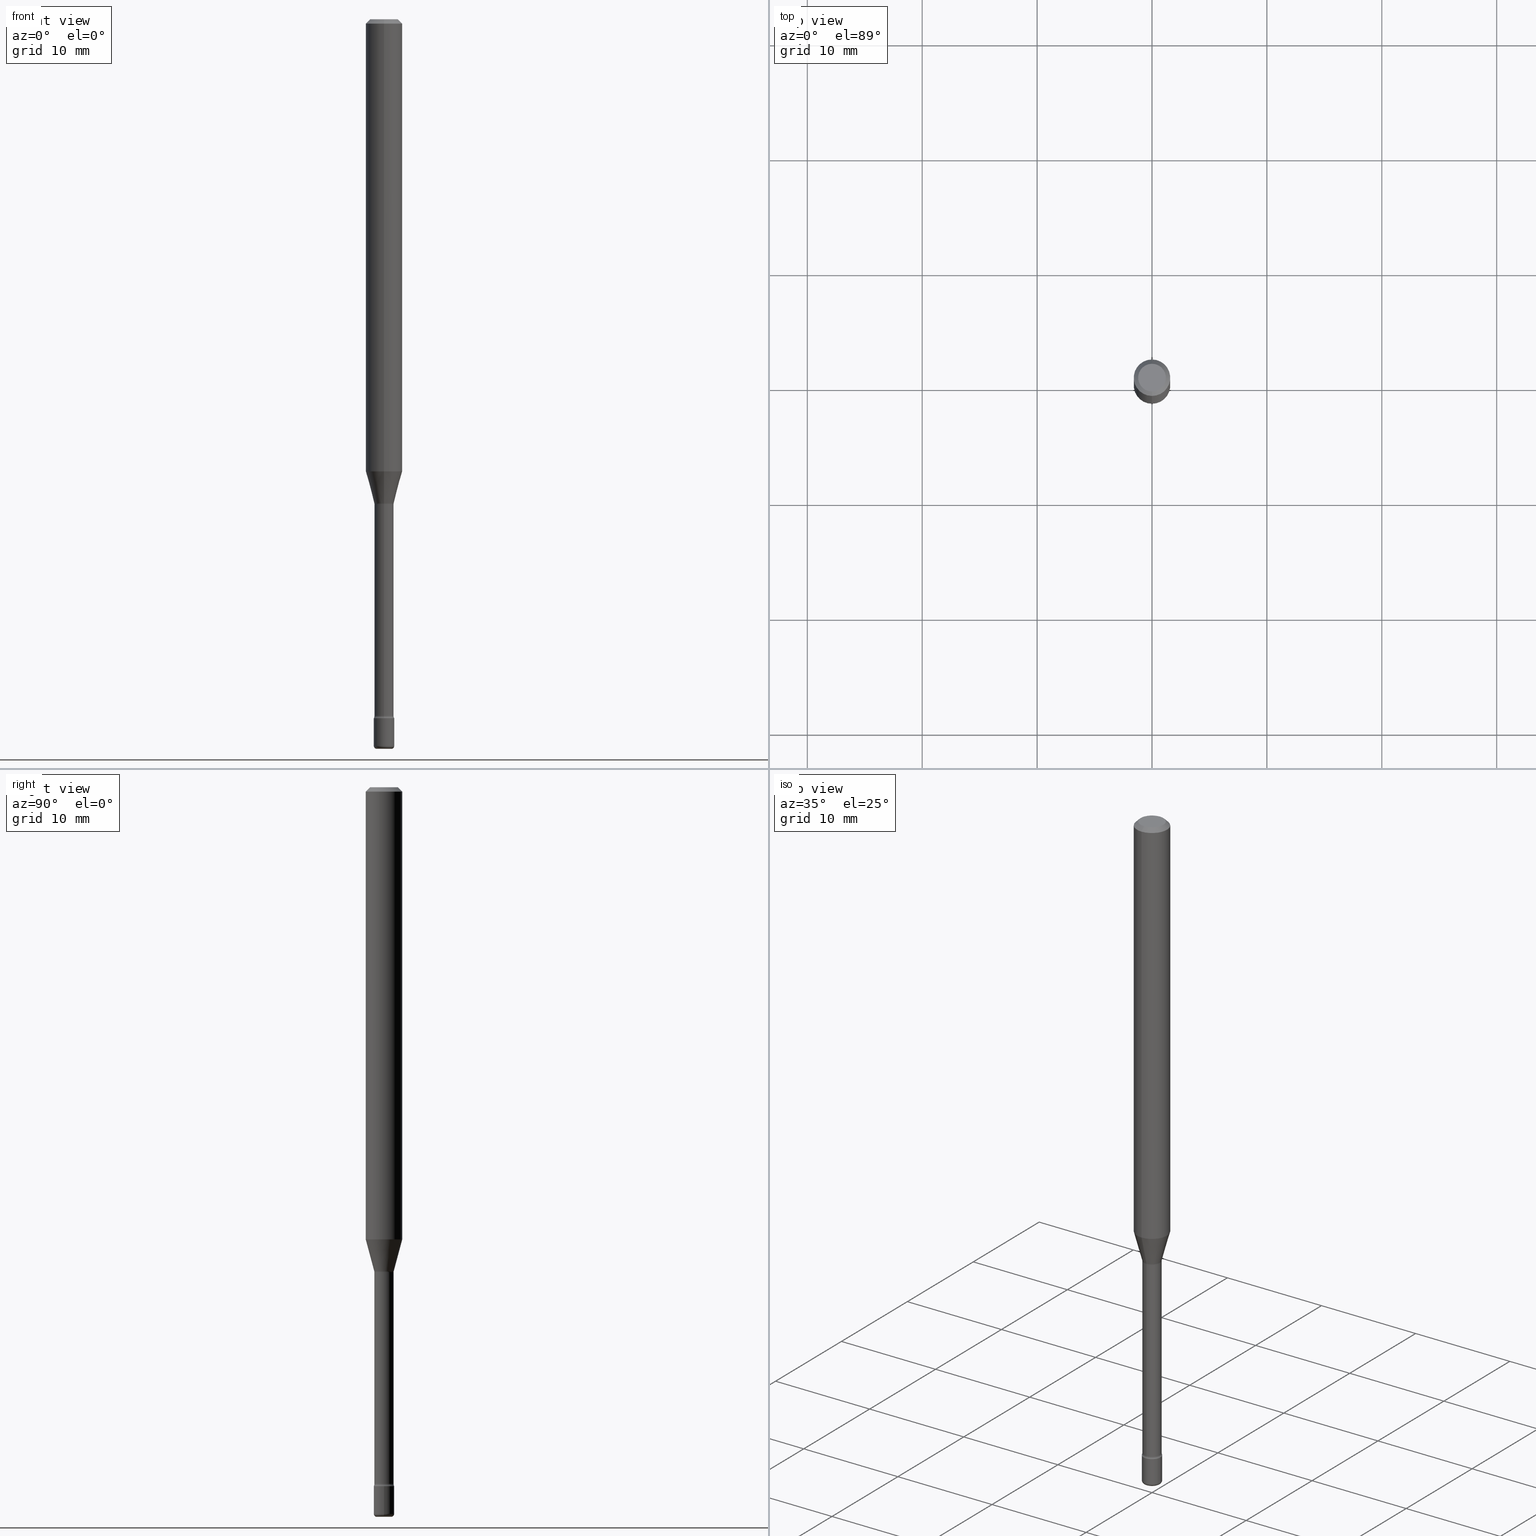
[diagram: canonical four-view strip — front | top / right | iso, engineering-drawing reading convention]
A machine part, canonical four-view strip (front | top / right | iso — engineering-drawing reading convention). The complete STEP part file that produces these views, byte-faithful:
ISO-10303-21;
HEADER;
FILE_DESCRIPTION (( 'STEP AP203' ),
    '1' );
FILE_NAME ('08937.STEP',
    '2024-03-06T20:11:35',
    ( '' ),
    ( '' ),
    'SwSTEP 2.0',
    'SolidWorks 2023',
    '' );
FILE_SCHEMA (( 'CONFIG_CONTROL_DESIGN' ));
ENDSEC;

DATA;
#1 = DIRECTION ( 'NONE',  ( -2.445361929537154917E-29, 3.491634392286096321E-15, 1.000000000000000000 ) ) ;
#2 = EDGE_CURVE ( 'NONE', #373, #99, #375, .T. ) ;
#3 = ORIENTED_EDGE ( 'NONE', *, *, #29, .T. ) ;
#4 = ORIENTED_EDGE ( 'NONE', *, *, #101, .F. ) ;
#5 = CARTESIAN_POINT ( 'NONE',  ( 2.374002335562130443E-16, 0.03341111260565819002, -1.658092501787273410 ) ) ;
#6 = CONICAL_SURFACE ( 'NONE', #281, 0.06250000000000000000, 0.7853981633974485010 ) ;
#7 = VECTOR ( 'NONE', #569, 39.37007874015748854 ) ;
#8 = PERSON_AND_ORGANIZATION ( #297, #303 ) ;
#9 = VERTEX_POINT ( 'NONE', #307 ) ;
#10 = DATE_AND_TIME ( #366, #537 ) ;
#11 = ORIENTED_EDGE ( 'NONE', *, *, #421, .T. ) ;
#12 = DIRECTION ( 'NONE',  ( 7.105427357601001859E-15, 1.000000000000000000, -3.491481338843145583E-15 ) ) ;
#13 = EDGE_CURVE ( 'NONE', #457, #275, #483, .T. ) ;
#14 = EDGE_LOOP ( 'NONE', ( #480, #201, #90, #508 ) ) ;
#15 = CARTESIAN_POINT ( 'NONE',  ( 4.064307499408922751E-29, -5.802753956057700708E-15, -1.661974787463811332 ) ) ;
#16 = EDGE_CURVE ( 'NONE', #231, #387, #131, .T. ) ;
#17 = EDGE_CURVE ( 'NONE', #231, #359, #294, .T. ) ;
#18 = AXIS2_PLACEMENT_3D ( 'NONE', #468, #168, #251 ) ;
#19 = AXIS2_PLACEMENT_3D ( 'NONE', #493, #314, #361 ) ;
#20 = PERSON_AND_ORGANIZATION_ROLE ( 'design_supplier' ) ;
#21 = EDGE_LOOP ( 'NONE', ( #547, #106, #311, #184 ) ) ;
#22 = CARTESIAN_POINT ( 'NONE',  ( -4.364351673553916201E-16, -0.06250000000000000000, 6.963005484091270833E-16 ) ) ;
#23 = CARTESIAN_POINT ( 'NONE',  ( 3.407447217031568368E-16, 0.03341111260565819002, -1.658092501787273410 ) ) ;
#24 = ORIENTED_EDGE ( 'NONE', *, *, #17, .F. ) ;
#25 = DIRECTION ( 'NONE',  ( -2.445361929537154917E-29, 3.491634392286096321E-15, 1.000000000000000000 ) ) ;
#26 = DIRECTION ( 'NONE',  ( -2.445468806185136597E-29, 3.491481338843145583E-15, 1.000000000000000000 ) ) ;
#27 = CARTESIAN_POINT ( 'NONE',  ( 4.064129873114609008E-29, -5.803008327021018948E-15, -1.661974787463811332 ) ) ;
#28 = EDGE_CURVE ( 'NONE', #57, #9, #130, .T. ) ;
#29 = EDGE_CURVE ( 'NONE', #373, #396, #92, .T. ) ;
#30 = AXIS2_PLACEMENT_3D ( 'NONE', #157, #26, #117 ) ;
#31 = AXIS2_PLACEMENT_3D ( 'NONE', #75, #515, #420 ) ;
#32 = AXIS2_PLACEMENT_3D ( 'NONE', #517, #202, #165 ) ;
#33 = DIRECTION ( 'NONE',  ( 1.000000000000000000, -6.982962677686265922E-15, 4.876176775795936353E-29 ) ) ;
#34 = EDGE_CURVE ( 'NONE', #543, #359, #318, .T. ) ;
#35 = CYLINDRICAL_SURFACE ( 'NONE', #191, 0.03290000000000004726 ) ;
#36 = EDGE_CURVE ( 'NONE', #388, #99, #64, .T. ) ;
#37 = AXIS2_PLACEMENT_3D ( 'NONE', #380, #426, #210 ) ;
#38 = DIRECTION ( 'NONE',  ( -6.982962677686265133E-15, -1.000000000000000000, 3.491634392286096715E-15 ) ) ;
#39 = ADVANCED_FACE ( 'NONE', ( #250 ), #340, .F. ) ;
#40 = DATE_AND_TIME ( #186, #431 ) ;
#41 = ORIENTED_EDGE ( 'NONE', *, *, #29, .F. ) ;
#42 = DIRECTION ( 'NONE',  ( -6.982962677686265922E-15, -1.000000000000000000, 4.370956789862821150E-15 ) ) ;
#43 = EDGE_LOOP ( 'NONE', ( #449, #292 ) ) ;
#44 = ORIENTED_EDGE ( 'NONE', *, *, #376, .F. ) ;
#45 = LINE ( 'NONE', #393, #115 ) ;
#46 = AXIS2_PLACEMENT_3D ( 'NONE', #448, #218, #179 ) ;
#47 = AXIS2_PLACEMENT_3D ( 'NONE', #312, #50, #532 ) ;
#48 = ADVANCED_FACE ( 'NONE', ( #164 ), #343, .T. ) ;
#49 = ADVANCED_FACE ( 'NONE', ( #345 ), #141, .T. ) ;
#50 = DIRECTION ( 'NONE',  ( -2.445468806185136597E-29, 3.491481338843145583E-15, 1.000000000000000000 ) ) ;
#51 = FACE_OUTER_BOUND ( 'NONE', #438, .T. ) ;
#52 = EDGE_LOOP ( 'NONE', ( #489, #533, #236, #409 ) ) ;
#53 = DIRECTION ( 'NONE',  ( -2.445468806185136597E-29, 3.491481338843145583E-15, 1.000000000000000000 ) ) ;
#54 = CONICAL_SURFACE ( 'NONE', #180, 0.03341111260566397706, 0.2617993877991495744 ) ;
#55 = CALENDAR_DATE ( 2024, 6, 3 ) ;
#56 = CC_DESIGN_APPROVAL ( #288, ( #441 ) ) ;
#57 = VERTEX_POINT ( 'NONE', #317 ) ;
#58 = PERSON_AND_ORGANIZATION_ROLE ( 'classification_officer' ) ;
#59 = ADVANCED_FACE ( 'NONE', ( #176 ), #269, .T. ) ;
#60 = ORIENTED_EDGE ( 'NONE', *, *, #36, .F. ) ;
#61 = ORIENTED_EDGE ( 'NONE', *, *, #86, .F. ) ;
#62 = APPLICATION_CONTEXT ( 'configuration controlled 3d designs of mechanical parts and assemblies' ) ;
#63 = CARTESIAN_POINT ( 'NONE',  ( 6.617399431615516844E-46, -9.463332413969183730E-32, -2.708191715859933263E-17 ) ) ;
#64 = CIRCLE ( 'NONE', #570, 0.03289999999999999869 ) ;
#65 = AXIS2_PLACEMENT_3D ( 'NONE', #15, #554, #239 ) ;
#66 = CALENDAR_DATE ( 2024, 6, 3 ) ;
#67 = DIRECTION ( 'NONE',  ( -1.807323732225325406E-15, -0.2588190451025175198, 0.9659258262890690894 ) ) ;
#68 = ORIENTED_EDGE ( 'NONE', *, *, #120, .T. ) ;
#69 = ADVANCED_FACE ( 'NONE', ( #498 ), #97, .T. ) ;
#70 = APPLICATION_PROTOCOL_DEFINITION ( 'international standard', 'config_control_design', 1994, #348 ) ;
#71 = DIRECTION ( 'NONE',  ( 2.445361929537154917E-29, -3.491634392286096321E-15, -1.000000000000000000 ) ) ;
#72 = MECHANICAL_CONTEXT ( 'NONE', #62, 'mechanical' ) ;
#73 = AXIS2_PLACEMENT_3D ( 'NONE', #27, #325, #507 ) ;
#74 = DIRECTION ( 'NONE',  ( -6.982962677686266711E-15, -1.000000000000000000, 3.491481338843145583E-15 ) ) ;
#75 = CARTESIAN_POINT ( 'NONE',  ( 2.444036937190778979E-16, 0.03499999999999164196, -2.395000000000000018 ) ) ;
#76 = AXIS2_PLACEMENT_3D ( 'NONE', #91, #182, #178 ) ;
#77 = LINE ( 'NONE', #5, #7 ) ;
#78 = APPROVAL_STATUS ( 'not_yet_approved' ) ;
#79 = DIRECTION ( 'NONE',  ( 1.000000000000000000, -6.982962677686254878E-15, 0.000000000000000000 ) ) ;
#80 = CARTESIAN_POINT ( 'NONE',  ( -1.169113584055446105E-44, 1.669184350826100908E-30, 4.780733988912460139E-16 ) ) ;
#81 = VERTEX_POINT ( 'NONE', #274 ) ;
#82 = CIRCLE ( 'NONE', #484, 0.03500000000000000333 ) ;
#83 = DIRECTION ( 'NONE',  ( -2.445361929537154917E-29, 3.491634392286096321E-15, 1.000000000000000000 ) ) ;
#84 = CARTESIAN_POINT ( 'NONE',  ( 3.668042894305739311E-31, -5.237451588429154292E-17, -0.01500000000000002720 ) ) ;
#85 = ADVANCED_FACE ( 'NONE', ( #51 ), #54, .T. ) ;
#86 = EDGE_CURVE ( 'NONE', #416, #9, #149, .T. ) ;
#87 = DIRECTION ( 'NONE',  ( 1.000000000000000000, -6.982962677686265922E-15, 4.876176775795935793E-29 ) ) ;
#88 = EDGE_LOOP ( 'NONE', ( #235, #192, #60, #552 ) ) ;
#89 = DIRECTION ( 'NONE',  ( -6.982962677686266711E-15, -1.000000000000000000, 0.000000000000000000 ) ) ;
#90 = ORIENTED_EDGE ( 'NONE', *, *, #516, .T. ) ;
#91 = CARTESIAN_POINT ( 'NONE',  ( -3.344839122611314876E-16, -0.04790000000000579905, -1.661974787463811110 ) ) ;
#92 = CIRCLE ( 'NONE', #37, 0.03290000000000008890 ) ;
#93 = AXIS2_PLACEMENT_3D ( 'NONE', #63, #25, #293 ) ;
#94 = PERSON_AND_ORGANIZATION ( #297, #303 ) ;
#95 = APPROVAL ( #506, 'UNSPECIFIED' ) ;
#96 = CARTESIAN_POINT ( 'NONE',  ( 6.113672015462842613E-29, -8.728703347107864943E-15, -2.500000000000000000 ) ) ;
#97 = PLANE ( 'NONE',  #521 ) ;
#98 = APPROVAL_STATUS ( 'not_yet_approved' ) ;
#99 = VERTEX_POINT ( 'NONE', #263 ) ;
#100 = PLANE ( 'NONE',  #214 ) ;
#101 = EDGE_CURVE ( 'NONE', #139, #99, #280, .T. ) ;
#102 = SECURITY_CLASSIFICATION_LEVEL ( 'unclassified' ) ;
#103 = VERTEX_POINT ( 'NONE', #337 ) ;
#104 = TOROIDAL_SURFACE ( 'NONE', #30, 0.02500000000000000139, 0.01000000000000008521 ) ;
#105 = AXIS2_PLACEMENT_3D ( 'NONE', #228, #439, #535 ) ;
#106 = ORIENTED_EDGE ( 'NONE', *, *, #242, .T. ) ;
#107 = CYLINDRICAL_SURFACE ( 'NONE', #536, 0.06250000000000000000 ) ;
#108 = ADVANCED_FACE ( 'NONE', ( #237 ), #104, .T. ) ;
#109 = SHAPE_DEFINITION_REPRESENTATION ( #446, #495 ) ;
#110 = VERTEX_POINT ( 'NONE', #551 ) ;
#111 = COORDINATED_UNIVERSAL_TIME_OFFSET ( 5, 0, .BEHIND. ) ;
#112 = EDGE_LOOP ( 'NONE', ( #188, #319 ) ) ;
#113 = PLANE ( 'NONE',  #31 ) ;
#114 = AXIS2_PLACEMENT_3D ( 'NONE', #166, #560, #38 ) ;
#115 = VECTOR ( 'NONE', #185, 39.37007874015748143 ) ;
#116 = DIRECTION ( 'NONE',  ( -2.445361929537154917E-29, 3.491634392286096321E-15, 1.000000000000000000 ) ) ;
#117 = DIRECTION ( 'NONE',  ( 1.000000000000000000, -6.982962677686259611E-15, 4.883557194083110659E-29 ) ) ;
#118 = CARTESIAN_POINT ( 'NONE',  ( 0.03500000000000000333, -8.606501500248353382E-15, -2.395000000000000018 ) ) ;
#119 = DIRECTION ( 'NONE',  ( 1.000000000000000000, 0.000000000000000000, 0.000000000000000000 ) ) ;
#120 = EDGE_CURVE ( 'NONE', #387, #543, #358, .T. ) ;
#121 = DIRECTION ( 'NONE',  ( -2.445361929537154917E-29, 3.491634392286096321E-15, 1.000000000000000000 ) ) ;
#122 = CARTESIAN_POINT ( 'NONE',  ( -3.344839122611139354E-16, -0.04790000000000835256, -2.387345589506696175 ) ) ;
#123 = FACE_OUTER_BOUND ( 'NONE', #436, .T. ) ;
#124 = ADVANCED_FACE ( 'NONE', ( #462 ), #107, .T. ) ;
#125 = EDGE_CURVE ( 'NONE', #396, #388, #410, .T. ) ;
#126 = CIRCLE ( 'NONE', #412, 0.06250000000000000000 ) ;
#127 = CC_DESIGN_APPROVAL ( #453, ( #382 ) ) ;
#128 = EDGE_CURVE ( 'NONE', #9, #416, #504, .T. ) ;
#129 = DIRECTION ( 'NONE',  ( -2.445361929537154917E-29, 3.491634392286096321E-15, 1.000000000000000000 ) ) ;
#130 = LINE ( 'NONE', #477, #349 ) ;
#131 = CIRCLE ( 'NONE', #528, 0.02500000000000000139 ) ;
#132 = EDGE_LOOP ( 'NONE', ( #4, #289, #219, #144 ) ) ;
#133 = TOROIDAL_SURFACE ( 'NONE', #198, 0.04790000000000001895, 0.01499999999999993006 ) ;
#134 = AXIS2_PLACEMENT_3D ( 'NONE', #122, #377, #369 ) ;
#135 = CARTESIAN_POINT ( 'NONE',  ( 5.856897790813402508E-29, -8.362097806529333416E-15, -2.395000000000000018 ) ) ;
#136 = CARTESIAN_POINT ( 'NONE',  ( 3.789164840099429105E-29, -5.410396765372311096E-15, -1.549531296095961519 ) ) ;
#137 = CC_DESIGN_PERSON_AND_ORGANIZATION_ASSIGNMENT ( #151, #20, ( #441 ) ) ;
#138 = APPROVAL_DATE_TIME ( #40, #453 ) ;
#139 = VERTEX_POINT ( 'NONE', #23 ) ;
#140 = LINE ( 'NONE', #355, #223 ) ;
#141 = CONICAL_SURFACE ( 'NONE', #461, 0.06250000000000000000, 0.7853981633974485010 ) ;
#142 = CIRCLE ( 'NONE', #76, 0.01500000000000001853 ) ;
#143 = PERSON_AND_ORGANIZATION_ROLE ( 'creator' ) ;
#144 = ORIENTED_EDGE ( 'NONE', *, *, #36, .T. ) ;
#145 = CARTESIAN_POINT ( 'NONE',  ( 5.838179168722291637E-29, -8.335372575132119928E-15, -2.387345589506696619 ) ) ;
#146 = DATE_AND_TIME ( #55, #414 ) ;
#147 = ORIENTED_EDGE ( 'NONE', *, *, #16, .T. ) ;
#148 = ORIENTED_EDGE ( 'NONE', *, *, #17, .T. ) ;
#149 = CIRCLE ( 'NONE', #450, 0.06250000000000000000 ) ;
#150 = AXIS2_PLACEMENT_3D ( 'NONE', #273, #1, #89 ) ;
#151 = PERSON_AND_ORGANIZATION ( #297, #303 ) ;
#152 = ORIENTED_EDGE ( 'NONE', *, *, #221, .T. ) ;
#153 = FACE_OUTER_BOUND ( 'NONE', #331, .T. ) ;
#154 = ADVANCED_FACE ( 'NONE', ( #153 ), #133, .F. ) ;
#155 = APPROVAL_ROLE ( '' ) ;
#156 = EDGE_LOOP ( 'NONE', ( #147, #68, #365, #24 ) ) ;
#157 = CARTESIAN_POINT ( 'NONE',  ( 6.089217327400989947E-29, -8.693788533719431716E-15, -2.489999999999999769 ) ) ;
#158 = ORIENTED_EDGE ( 'NONE', *, *, #466, .F. ) ;
#159 = VECTOR ( 'NONE', #169, 39.37007874015748143 ) ;
#160 = AXIS2_PLACEMENT_3D ( 'NONE', #381, #475, #344 ) ;
#161 =( LENGTH_UNIT ( ) NAMED_UNIT ( * ) SI_UNIT ( $, .METRE. ) );
#162 = DIRECTION ( 'NONE',  ( 7.105427357601001859E-15, 1.000000000000000000, 0.000000000000000000 ) ) ;
#163 = DIRECTION ( 'NONE',  ( -6.982962677686265922E-15, -1.000000000000000000, 3.491634392286095926E-15 ) ) ;
#164 = FACE_OUTER_BOUND ( 'NONE', #407, .T. ) ;
#165 = DIRECTION ( 'NONE',  ( -6.982962677686266711E-15, -1.000000000000000000, 0.000000000000000000 ) ) ;
#166 = CARTESIAN_POINT ( 'NONE',  ( 6.617399431615516844E-46, -9.463332413969183730E-32, -2.708191715859933263E-17 ) ) ;
#167 = DIRECTION ( 'NONE',  ( 1.000000000000000000, -6.982962677686276966E-15, 0.000000000000000000 ) ) ;
#168 = DIRECTION ( 'NONE',  ( -2.445361929537154917E-29, 3.491634392286096321E-15, 1.000000000000000000 ) ) ;
#169 = DIRECTION ( 'NONE',  ( -2.445361929537154917E-29, 3.491634392286096321E-15, 1.000000000000000000 ) ) ;
#170 = VECTOR ( 'NONE', #197, 39.37007874015748143 ) ;
#171 = LOCAL_TIME ( 15, 11, 35.00000000000000000, #278 ) ;
#172 = CARTESIAN_POINT ( 'NONE',  ( -4.287811248607203282E-16, -0.06250000000000005551, -0.01499999999999981036 ) ) ;
#173 = MANIFOLD_SOLID_BREP ( 'Body-Move/Copy2[1]', #378 ) ;
#174 = CARTESIAN_POINT ( 'NONE',  ( 3.668042894305739311E-31, -5.237451588429154292E-17, -0.01500000000000002720 ) ) ;
#175 = DIRECTION ( 'NONE',  ( -6.982962677686265133E-15, -1.000000000000000000, 3.491634392286096321E-15 ) ) ;
#176 = FACE_OUTER_BOUND ( 'NONE', #88, .T. ) ;
#177 = VERTEX_POINT ( 'NONE', #418 ) ;
#178 = DIRECTION ( 'NONE',  ( -6.982962677686267499E-15, -1.000000000000000000, 0.000000000000000000 ) ) ;
#179 = DIRECTION ( 'NONE',  ( -6.982962677686265133E-15, -1.000000000000000000, 3.491634392286094348E-15 ) ) ;
#180 = AXIS2_PLACEMENT_3D ( 'NONE', #230, #266, #525 ) ;
#181 = ORIENTED_EDGE ( 'NONE', *, *, #13, .T. ) ;
#182 = DIRECTION ( 'NONE',  ( -1.000000000000000000, 6.982962677686265922E-15, -4.883557194083112340E-29 ) ) ;
#183 = MANIFOLD_SOLID_BREP ( 'Body-Move/Copy2[2]', #401 ) ;
#184 = ORIENTED_EDGE ( 'NONE', *, *, #478, .F. ) ;
#185 = DIRECTION ( 'NONE',  ( 4.937700262164548831E-15, 0.7071067811865452413, -0.7071067811865497932 ) ) ;
#186 = CALENDAR_DATE ( 2024, 6, 3 ) ;
#187 = DESIGN_CONTEXT ( 'detailed design', #348, 'design' ) ;
#188 = ORIENTED_EDGE ( 'NONE', *, *, #296, .T. ) ;
#189 = ORIENTED_EDGE ( 'NONE', *, *, #482, .F. ) ;
#190 = DIRECTION ( 'NONE',  ( -2.445361929537154917E-29, 3.491634392286096321E-15, 1.000000000000000000 ) ) ;
#191 = AXIS2_PLACEMENT_3D ( 'NONE', #80, #256, #425 ) ;
#192 = ORIENTED_EDGE ( 'NONE', *, *, #2, .T. ) ;
#193 = EDGE_CURVE ( 'NONE', #110, #103, #406, .T. ) ;
#194 = ORIENTED_EDGE ( 'NONE', *, *, #252, .T. ) ;
#195 = ORIENTED_EDGE ( 'NONE', *, *, #419, .F. ) ;
#196 = CARTESIAN_POINT ( 'NONE',  ( -0.03500000000000004496, -8.445098576203397219E-15, -2.489999999999999769 ) ) ;
#197 = DIRECTION ( 'NONE',  ( -2.445361929537154917E-29, 3.491634392286096321E-15, 1.000000000000000000 ) ) ;
#198 = AXIS2_PLACEMENT_3D ( 'NONE', #255, #422, #367 ) ;
#199 = ADVANCED_FACE ( 'NONE', ( #364 ), #204, .T. ) ;
#200 = ORIENTED_EDGE ( 'NONE', *, *, #556, .F. ) ;
#201 = ORIENTED_EDGE ( 'NONE', *, *, #257, .T. ) ;
#202 = DIRECTION ( 'NONE',  ( -2.445361929537154917E-29, 3.491634392286096321E-15, 1.000000000000000000 ) ) ;
#203 = AXIS2_PLACEMENT_3D ( 'NONE', #520, #121, #259 ) ;
#204 = TOROIDAL_SURFACE ( 'NONE', #258, 0.02500000000000000139, 0.01000000000000008521 ) ;
#205 = CIRCLE ( 'NONE', #342, 0.03500000000000000333 ) ;
#206 = FACE_OUTER_BOUND ( 'NONE', #326, .T. ) ;
#207 = FACE_OUTER_BOUND ( 'NONE', #324, .T. ) ;
#208 = DIRECTION ( 'NONE',  ( 2.445361929537154917E-29, -3.491634392286096321E-15, -1.000000000000000000 ) ) ;
#209 = FACE_OUTER_BOUND ( 'NONE', #21, .T. ) ;
#210 = DIRECTION ( 'NONE',  ( -6.982962677686266711E-15, -1.000000000000000000, 0.000000000000000000 ) ) ;
#211 = CARTESIAN_POINT ( 'NONE',  ( 5.856641821241486538E-29, -8.362464369525200210E-15, -2.395000000000000018 ) ) ;
#212 = VECTOR ( 'NONE', #67, 39.37007874015748854 ) ;
#213 = CARTESIAN_POINT ( 'NONE',  ( 6.089217327400989947E-29, -8.693788533719431716E-15, -2.489999999999999769 ) ) ;
#214 = AXIS2_PLACEMENT_3D ( 'NONE', #276, #330, #512 ) ;
#215 = CC_DESIGN_PERSON_AND_ORGANIZATION_ASSIGNMENT ( #8, #234, ( #441 ) ) ;
#216 = PERSON_AND_ORGANIZATION ( #297, #303 ) ;
#217 = DIRECTION ( 'NONE',  ( 1.000000000000000000, -6.982962677686276966E-15, 0.000000000000000000 ) ) ;
#218 = DIRECTION ( 'NONE',  ( -2.445361929537154917E-29, 3.491634392286096321E-15, 1.000000000000000000 ) ) ;
#219 = ORIENTED_EDGE ( 'NONE', *, *, #394, .T. ) ;
#220 = AXIS2_PLACEMENT_3D ( 'NONE', #465, #12, #327 ) ;
#221 = EDGE_CURVE ( 'NONE', #99, #388, #440, .T. ) ;
#222 = VERTEX_POINT ( 'NONE', #285 ) ;
#223 = VECTOR ( 'NONE', #539, 39.37007874015748143 ) ;
#224 = DIRECTION ( 'NONE',  ( -2.445468806185136877E-29, 3.491481338843145188E-15, 1.000000000000000000 ) ) ;
#225 = ADVANCED_FACE ( 'NONE', ( #207 ), #254, .T. ) ;
#226 = LINE ( 'NONE', #397, #473 ) ;
#227 = ORIENTED_EDGE ( 'NONE', *, *, #2, .F. ) ;
#228 = CARTESIAN_POINT ( 'NONE',  ( 0.000000000000000000, 0.000000000000000000, 0.000000000000000000 ) ) ;
#229 = COORDINATED_UNIVERSAL_TIME_OFFSET ( 5, 0, .BEHIND. ) ;
#230 = CARTESIAN_POINT ( 'NONE',  ( 4.054636279521615548E-29, -5.789452804832138802E-15, -1.658092501787273410 ) ) ;
#231 = VERTEX_POINT ( 'NONE', #305 ) ;
#232 = CIRCLE ( 'NONE', #555, 0.03500000000000000333 ) ;
#233 = APPROVAL_PERSON_ORGANIZATION ( #541, #95, #155 ) ;
#234 = PERSON_AND_ORGANIZATION_ROLE ( 'creator' ) ;
#235 = ORIENTED_EDGE ( 'NONE', *, *, #549, .T. ) ;
#236 = ORIENTED_EDGE ( 'NONE', *, *, #478, .T. ) ;
#237 = FACE_OUTER_BOUND ( 'NONE', #286, .T. ) ;
#238 = ORIENTED_EDGE ( 'NONE', *, *, #376, .T. ) ;
#239 = DIRECTION ( 'NONE',  ( -6.982962677686265133E-15, -1.000000000000000000, 3.491634392286096321E-15 ) ) ;
#240 = CARTESIAN_POINT ( 'NONE',  ( -2.297394720958784485E-16, -0.03290000000000004726, 5.929481703974587272E-16 ) ) ;
#241 = CIRCLE ( 'NONE', #114, 0.04749999999999998668 ) ;
#242 = EDGE_CURVE ( 'NONE', #81, #416, #379, .T. ) ;
#243 = CARTESIAN_POINT ( 'NONE',  ( 6.089217327400989947E-29, -8.693788533719431716E-15, -2.489999999999999769 ) ) ;
#244 = ORIENTED_EDGE ( 'NONE', *, *, #328, .T. ) ;
#245 = LINE ( 'NONE', #22, #423 ) ;
#246 = DIRECTION ( 'NONE',  ( 2.445361929537154636E-29, -3.491634392286096321E-15, -1.000000000000000000 ) ) ;
#247 = AXIS2_PLACEMENT_3D ( 'NONE', #371, #413, #548 ) ;
#248 = TOROIDAL_SURFACE ( 'NONE', #65, 0.04789999999999999813, 0.01500000000000002373 ) ;
#249 = CC_DESIGN_PERSON_AND_ORGANIZATION_ASSIGNMENT ( #405, #58, ( #564 ) ) ;
#250 = FACE_OUTER_BOUND ( 'NONE', #112, .T. ) ;
#251 = DIRECTION ( 'NONE',  ( -6.982962677686266711E-15, -1.000000000000000000, 0.000000000000000000 ) ) ;
#252 = EDGE_CURVE ( 'NONE', #110, #139, #530, .T. ) ;
#253 = CARTESIAN_POINT ( 'NONE',  ( 0.02500000000000000139, -8.868362600661588384E-15, -2.489999999999999769 ) ) ;
#254 = CYLINDRICAL_SURFACE ( 'NONE', #335, 0.06250000000000000000 ) ;
#255 = CARTESIAN_POINT ( 'NONE',  ( 5.838179168722291637E-29, -8.335372575132119928E-15, -2.387345589506696619 ) ) ;
#256 = DIRECTION ( 'NONE',  ( -2.445361929537154917E-29, 3.491634392286096321E-15, 1.000000000000000000 ) ) ;
#257 = EDGE_CURVE ( 'NONE', #57, #103, #126, .T. ) ;
#258 = AXIS2_PLACEMENT_3D ( 'NONE', #243, #546, #415 ) ;
#259 = DIRECTION ( 'NONE',  ( -6.982962677686265922E-15, -1.000000000000000000, 0.000000000000000000 ) ) ;
#260 = ORIENTED_EDGE ( 'NONE', *, *, #447, .T. ) ;
#261 = CARTESIAN_POINT ( 'NONE',  ( 0.000000000000000000, 0.000000000000000000, 0.000000000000000000 ) ) ;
#262 = FACE_OUTER_BOUND ( 'NONE', #511, .T. ) ;
#263 = CARTESIAN_POINT ( 'NONE',  ( 2.337685600651316727E-16, 0.03289999999999419777, -1.661974787463811332 ) ) ;
#264 = ADVANCED_FACE ( 'NONE', ( #209 ), #6, .T. ) ;
#265 = ORIENTED_EDGE ( 'NONE', *, *, #549, .F. ) ;
#266 = DIRECTION ( 'NONE',  ( -2.445361929537154917E-29, 3.491634392286096321E-15, 1.000000000000000000 ) ) ;
#267 = ORIENTED_EDGE ( 'NONE', *, *, #513, .T. ) ;
#268 = DIRECTION ( 'NONE',  ( -6.982962677686265922E-15, -1.000000000000000000, 3.491634392286096321E-15 ) ) ;
#269 = CYLINDRICAL_SURFACE ( 'NONE', #46, 0.03290000000000004726 ) ;
#270 = CIRCLE ( 'NONE', #47, 0.03500000000000000333 ) ;
#271 = CARTESIAN_POINT ( 'NONE',  ( -0.02500000000000000139, -8.498083119685618084E-15, -2.500000000000000000 ) ) ;
#272 = ORIENTED_EDGE ( 'NONE', *, *, #193, .T. ) ;
#273 = CARTESIAN_POINT ( 'NONE',  ( 4.054636279521615548E-29, -5.789452804832138802E-15, -1.658092501787273410 ) ) ;
#274 = CARTESIAN_POINT ( 'NONE',  ( -3.773273898774339776E-16, -0.04749999999999998668, 1.387707164749902092E-16 ) ) ;
#275 = VERTEX_POINT ( 'NONE', #341 ) ;
#276 = CARTESIAN_POINT ( 'NONE',  ( 1.745740669422178045E-16, 0.02499999999999127226, -2.500000000000000000 ) ) ;
#277 = DIMENSIONAL_EXPONENTS ( 1.000000000000000000, 0.000000000000000000, 0.000000000000000000, 0.000000000000000000, 0.000000000000000000, 0.000000000000000000, 0.000000000000000000 ) ;
#278 = COORDINATED_UNIVERSAL_TIME_OFFSET ( 5, 0, .BEHIND. ) ;
#279 = EDGE_LOOP ( 'NONE', ( #227, #3, #368, #527 ) ) ;
#280 = CIRCLE ( 'NONE', #472, 0.01500000000000001853 ) ;
#281 = AXIS2_PLACEMENT_3D ( 'NONE', #567, #71, #428 ) ;
#282 = APPROVAL_PERSON_ORGANIZATION ( #94, #288, #290 ) ;
#283 = ADVANCED_FACE ( 'NONE', ( #559 ), #35, .T. ) ;
#284 = DATE_AND_TIME ( #398, #360 ) ;
#285 = CARTESIAN_POINT ( 'NONE',  ( 3.840629472727447874E-16, 0.04749999999999998668, -1.929345507921888683E-16 ) ) ;
#286 = EDGE_LOOP ( 'NONE', ( #451, #455, #148, #363 ) ) ;
#287 = DIRECTION ( 'NONE',  ( -6.982962677686265922E-15, -1.000000000000000000, 3.491634392286095926E-15 ) ) ;
#288 = APPROVAL ( #98, 'UNSPECIFIED' ) ;
#289 = ORIENTED_EDGE ( 'NONE', *, *, #252, .F. ) ;
#290 = APPROVAL_ROLE ( '' ) ;
#291 = CARTESIAN_POINT ( 'NONE',  ( -2.333085523452841648E-16, -0.03341111260566976410, -1.658092501787273410 ) ) ;
#292 = ORIENTED_EDGE ( 'NONE', *, *, #488, .F. ) ;
#293 = DIRECTION ( 'NONE',  ( -6.982962677686265133E-15, -1.000000000000000000, 3.491634392286096715E-15 ) ) ;
#294 = CIRCLE ( 'NONE', #529, 0.01000000000000008521 ) ;
#295 = CC_DESIGN_APPROVAL ( #95, ( #564 ) ) ;
#296 = EDGE_CURVE ( 'NONE', #222, #81, #241, .T. ) ;
#297 = PERSON ( 'UNSPECIFIED', 'UNSPECIFIED', 'UNSPECIFIED', ('UNSPECIFIED'), ('UNSPECIFIED'), ('UNSPECIFIED') ) ;
#298 = DIRECTION ( 'NONE',  ( 6.982962677686265922E-15, 1.000000000000000000, -3.491634392286096321E-15 ) ) ;
#299 = CARTESIAN_POINT ( 'NONE',  ( 2.412292587906125932E-16, 0.03289999999999175528, -2.387345589506696619 ) ) ;
#300 = PRODUCT_RELATED_PRODUCT_CATEGORY ( 'detail', '', ( #494 ) ) ;
#301 = DIRECTION ( 'NONE',  ( -4.851104656540965064E-15, -0.7071067811865501263, -0.7071067811865449082 ) ) ;
#302 = VECTOR ( 'NONE', #301, 39.37007874015748143 ) ;
#303 = ORGANIZATION ( 'UNSPECIFIED', 'UNSPECIFIED', '' ) ;
#304 = ADVANCED_FACE ( 'NONE', ( #262 ), #562, .F. ) ;
#305 = CARTESIAN_POINT ( 'NONE',  ( 0.02500000000000000139, -8.903277414050021610E-15, -2.500000000000000000 ) ) ;
#306 = CC_DESIGN_DATE_AND_TIME_ASSIGNMENT ( #10, #362, ( #564 ) ) ;
#307 = CARTESIAN_POINT ( 'NONE',  ( 4.440892098501006787E-16, 0.06249999999999995143, -0.01500000000000024578 ) ) ;
#308 =( NAMED_UNIT ( * ) PLANE_ANGLE_UNIT ( ) SI_UNIT ( $, .RADIAN. ) );
#309 = ORIENTED_EDGE ( 'NONE', *, *, #257, .F. ) ;
#310 = CIRCLE ( 'NONE', #505, 0.02500000000000000139 ) ;
#311 = ORIENTED_EDGE ( 'NONE', *, *, #86, .T. ) ;
#312 = CARTESIAN_POINT ( 'NONE',  ( 6.089217327400989947E-29, -8.693788533719431716E-15, -2.489999999999999769 ) ) ;
#313 = DIRECTION ( 'NONE',  ( -2.438088387897960049E-29, 3.491481338843145188E-15, 1.000000000000000000 ) ) ;
#314 = DIRECTION ( 'NONE',  ( 1.000000000000000000, -7.105427357601001070E-15, 4.926317382906172649E-29 ) ) ;
#315 = CC_DESIGN_PERSON_AND_ORGANIZATION_ASSIGNMENT ( #443, #143, ( #382 ) ) ;
#316 = CARTESIAN_POINT ( 'NONE',  ( -4.364351673553912750E-16, -0.06250000000000005551, -0.01499999999999981036 ) ) ;
#317 = CARTESIAN_POINT ( 'NONE',  ( 4.440892098501002843E-16, 0.06249999999999456685, -1.549531296095961963 ) ) ;
#318 = CIRCLE ( 'NONE', #385, 0.03500000000000000333 ) ;
#319 = ORIENTED_EDGE ( 'NONE', *, *, #519, .T. ) ;
#320 = TOROIDAL_SURFACE ( 'NONE', #391, 0.04790000000000001895, 0.01499999999999993006 ) ;
#321 = ADVANCED_FACE ( 'NONE', ( #526 ), #403, .T. ) ;
#322 = VERTEX_POINT ( 'NONE', #118 ) ;
#323 = FACE_OUTER_BOUND ( 'NONE', #43, .T. ) ;
#324 = EDGE_LOOP ( 'NONE', ( #534, #499, #61, #460 ) ) ;
#325 = DIRECTION ( 'NONE',  ( -2.445361929537154917E-29, 3.491634392286096321E-15, 1.000000000000000000 ) ) ;
#326 = EDGE_LOOP ( 'NONE', ( #550, #503 ) ) ;
#327 = DIRECTION ( 'NONE',  ( -1.000000000000000000, 7.105427357600962416E-15, 0.000000000000000000 ) ) ;
#328 = EDGE_CURVE ( 'NONE', #275, #457, #82, .T. ) ;
#329 = ORIENTED_EDGE ( 'NONE', *, *, #556, .T. ) ;
#330 = DIRECTION ( 'NONE',  ( 2.438088387897960049E-29, -3.491481338843145188E-15, -1.000000000000000000 ) ) ;
#331 = EDGE_LOOP ( 'NONE', ( #41, #510, #181, #200 ) ) ;
#332 = LENGTH_MEASURE_WITH_UNIT ( LENGTH_MEASURE( 0.02539999999999999897 ), #161 );
#333 = DIRECTION ( 'NONE',  ( -2.445361929537154917E-29, 3.491634392286096321E-15, 1.000000000000000000 ) ) ;
#334 = CARTESIAN_POINT ( 'NONE',  ( 2.337685600650732477E-16, 0.03290000000000004726, 3.631986273850333500E-16 ) ) ;
#335 = AXIS2_PLACEMENT_3D ( 'NONE', #427, #83, #163 ) ;
#336 = CC_DESIGN_SECURITY_CLASSIFICATION ( #564, ( #441 ) ) ;
#337 = CARTESIAN_POINT ( 'NONE',  ( -4.364351673553540013E-16, -0.06250000000000544009, -1.549531296095961297 ) ) ;
#338 = CARTESIAN_POINT ( 'NONE',  ( 0.000000000000000000, 0.000000000000000000, 0.000000000000000000 ) ) ;
#339 =( CONVERSION_BASED_UNIT ( 'INCH', #332 ) LENGTH_UNIT ( ) NAMED_UNIT ( #277 ) );
#340 = PLANE ( 'NONE',  #389 ) ;
#341 = CARTESIAN_POINT ( 'NONE',  ( -2.444036937189605549E-16, -0.03500000000000832306, -2.395000000000000018 ) ) ;
#342 = AXIS2_PLACEMENT_3D ( 'NONE', #458, #464, #558 ) ;
#343 = CYLINDRICAL_SURFACE ( 'NONE', #370, 0.03500000000000000333 ) ;
#344 = DIRECTION ( 'NONE',  ( -6.982962677686266711E-15, -1.000000000000000000, 0.000000000000000000 ) ) ;
#345 = FACE_OUTER_BOUND ( 'NONE', #52, .T. ) ;
#346 = CARTESIAN_POINT ( 'NONE',  ( 3.789164840099429105E-29, -5.410396765372311096E-15, -1.549531296095961519 ) ) ;
#347 = ORIENTED_EDGE ( 'NONE', *, *, #101, .T. ) ;
#348 = APPLICATION_CONTEXT ( 'configuration controlled 3d designs of mechanical parts and assemblies' ) ;
#349 = VECTOR ( 'NONE', #116, 39.37007874015748143 ) ;
#350 = CIRCLE ( 'NONE', #32, 0.03290000000000008890 ) ;
#351 = AXIS2_PLACEMENT_3D ( 'NONE', #261, #433, #119 ) ;
#352 = ORIENTED_EDGE ( 'NONE', *, *, #394, .F. ) ;
#353 = APPLICATION_PROTOCOL_DEFINITION ( 'international standard', 'config_control_design', 1994, #62 ) ;
#354 = DIRECTION ( 'NONE',  ( -6.982962677686265922E-15, -1.000000000000000000, 4.370956789862821150E-15 ) ) ;
#355 = CARTESIAN_POINT ( 'NONE',  ( -0.03500000000000000333, 2.486899575160350887E-16, -1.721627281589217108E-30 ) ) ;
#356 = CARTESIAN_POINT ( 'NONE',  ( -2.297394720958374770E-16, -0.03290000000000579961, -1.661974787463811332 ) ) ;
#357 = EDGE_CURVE ( 'NONE', #322, #177, #232, .T. ) ;
#358 = CIRCLE ( 'NONE', #220, 0.01000000000000008521 ) ;
#359 = VERTEX_POINT ( 'NONE', #434 ) ;
#360 = LOCAL_TIME ( 15, 11, 35.00000000000000000, #459 ) ;
#361 = DIRECTION ( 'NONE',  ( 7.105427357601001859E-15, 1.000000000000000000, 0.000000000000000000 ) ) ;
#362 = DATE_TIME_ROLE ( 'classification_date' ) ;
#363 = ORIENTED_EDGE ( 'NONE', *, *, #34, .F. ) ;
#364 = FACE_OUTER_BOUND ( 'NONE', #156, .T. ) ;
#365 = ORIENTED_EDGE ( 'NONE', *, *, #421, .F. ) ;
#366 = CALENDAR_DATE ( 2024, 6, 3 ) ;
#367 = DIRECTION ( 'NONE',  ( -6.982962677686265922E-15, -1.000000000000000000, 3.491634392286096321E-15 ) ) ;
#368 = ORIENTED_EDGE ( 'NONE', *, *, #125, .T. ) ;
#369 = DIRECTION ( 'NONE',  ( -6.982962677686266711E-15, -1.000000000000000000, 0.000000000000000000 ) ) ;
#370 = AXIS2_PLACEMENT_3D ( 'NONE', #338, #566, #33 ) ;
#371 = CARTESIAN_POINT ( 'NONE',  ( 3.668042894305739311E-31, -5.237451588429154292E-17, -0.01500000000000002720 ) ) ;
#372 = APPROVAL_PERSON_ORGANIZATION ( #470, #453, #395 ) ;
#373 = VERTEX_POINT ( 'NONE', #299 ) ;
#374 = ADVANCED_FACE ( 'NONE', ( #123 ), #320, .F. ) ;
#375 = LINE ( 'NONE', #334, #159 ) ;
#376 = EDGE_CURVE ( 'NONE', #139, #57, #77, .T. ) ;
#377 = DIRECTION ( 'NONE',  ( -1.000000000000000000, 6.982962677686265922E-15, -4.883557194083112340E-29 ) ) ;
#378 = CLOSED_SHELL ( 'NONE', ( #48, #199, #69, #491, #108, #469 ) ) ;
#379 = LINE ( 'NONE', #172, #302 ) ;
#380 = CARTESIAN_POINT ( 'NONE',  ( 5.837924017228111976E-29, -8.335737966594106856E-15, -2.387345589506696619 ) ) ;
#381 = CARTESIAN_POINT ( 'NONE',  ( 4.054636279521615548E-29, -5.789452804832138802E-15, -1.658092501787273410 ) ) ;
#382 = PRODUCT_DEFINITION ( 'UNKNOWN', '', #441, #187 ) ;
#383 = DIRECTION ( 'NONE',  ( -2.445361929537154917E-29, 3.491634392286096321E-15, 1.000000000000000000 ) ) ;
#384 = DIRECTION ( 'NONE',  ( -6.982962677686265922E-15, -1.000000000000000000, 0.000000000000000000 ) ) ;
#385 = AXIS2_PLACEMENT_3D ( 'NONE', #213, #479, #167 ) ;
#386 = DIRECTION ( 'NONE',  ( -6.982962677686265133E-15, -1.000000000000000000, 0.000000000000000000 ) ) ;
#387 = VERTEX_POINT ( 'NONE', #271 ) ;
#388 = VERTEX_POINT ( 'NONE', #356 ) ;
#389 = AXIS2_PLACEMENT_3D ( 'NONE', #561, #246, #298 ) ;
#390 = COORDINATED_UNIVERSAL_TIME_OFFSET ( 5, 0, .BEHIND. ) ;
#391 = AXIS2_PLACEMENT_3D ( 'NONE', #145, #437, #268 ) ;
#392 = ORIENTED_EDGE ( 'NONE', *, *, #474, .F. ) ;
#393 = CARTESIAN_POINT ( 'NONE',  ( 4.364351673553919652E-16, 0.06249999999999995143, -0.01500000000000024578 ) ) ;
#394 = EDGE_CURVE ( 'NONE', #110, #388, #142, .T. ) ;
#395 = APPROVAL_ROLE ( '' ) ;
#396 = VERTEX_POINT ( 'NONE', #400 ) ;
#397 = CARTESIAN_POINT ( 'NONE',  ( 0.03500000000000000333, -2.444036937190193250E-16, 1.706661871528577808E-30 ) ) ;
#398 = CALENDAR_DATE ( 2024, 6, 3 ) ;
#399 = ORIENTED_EDGE ( 'NONE', *, *, #447, .F. ) ;
#400 = CARTESIAN_POINT ( 'NONE',  ( -2.297394720958204179E-16, -0.03290000000000842945, -2.387345589506696619 ) ) ;
#401 = CLOSED_SHELL ( 'NONE', ( #304, #59, #154, #264, #225, #321, #85, #124, #49, #39, #497, #374, #283, #565 ) ) ;
#402 = UNCERTAINTY_MEASURE_WITH_UNIT (LENGTH_MEASURE( 1.000000000000000082E-05 ), #339, 'distance_accuracy_value', 'NONE');
#403 = CONICAL_SURFACE ( 'NONE', #160, 0.03341111260566397706, 0.2617993877991495744 ) ;
#404 = ORIENTED_EDGE ( 'NONE', *, *, #193, .F. ) ;
#405 = PERSON_AND_ORGANIZATION ( #297, #303 ) ;
#406 = LINE ( 'NONE', #291, #212 ) ;
#407 = EDGE_LOOP ( 'NONE', ( #11, #542, #485, #392 ) ) ;
#408 = CC_DESIGN_PERSON_AND_ORGANIZATION_ASSIGNMENT ( #216, #456, ( #494 ) ) ;
#409 = ORIENTED_EDGE ( 'NONE', *, *, #128, .T. ) ;
#410 = LINE ( 'NONE', #240, #170 ) ;
#411 = ORIENTED_EDGE ( 'NONE', *, *, #513, .F. ) ;
#412 = AXIS2_PLACEMENT_3D ( 'NONE', #346, #518, #42 ) ;
#413 = DIRECTION ( 'NONE',  ( -2.445361929537154917E-29, 3.491634392286096321E-15, 1.000000000000000000 ) ) ;
#414 = LOCAL_TIME ( 15, 11, 35.00000000000000000, #229 ) ;
#415 = DIRECTION ( 'NONE',  ( 1.000000000000000000, -6.982962677686259611E-15, 4.883557194083110659E-29 ) ) ;
#416 = VERTEX_POINT ( 'NONE', #316 ) ;
#417 = DIRECTION ( 'NONE',  ( -2.445361929537154917E-29, 3.491634392286096321E-15, 1.000000000000000000 ) ) ;
#418 = CARTESIAN_POINT ( 'NONE',  ( -0.03500000000000000333, -8.279253212608347280E-15, -2.395000000000000018 ) ) ;
#419 = EDGE_CURVE ( 'NONE', #103, #57, #523, .T. ) ;
#420 = DIRECTION ( 'NONE',  ( -6.982962677686265922E-15, -1.000000000000000000, 3.491634392286096321E-15 ) ) ;
#421 = EDGE_CURVE ( 'NONE', #359, #543, #270, .T. ) ;
#422 = DIRECTION ( 'NONE',  ( -2.445361929537154917E-29, 3.491634392286096321E-15, 1.000000000000000000 ) ) ;
#423 = VECTOR ( 'NONE', #417, 39.37007874015748143 ) ;
#424 = CC_DESIGN_DATE_AND_TIME_ASSIGNMENT ( #146, #501, ( #382 ) ) ;
#425 = DIRECTION ( 'NONE',  ( -6.982962677686265133E-15, -1.000000000000000000, 3.491634392286094348E-15 ) ) ;
#426 = DIRECTION ( 'NONE',  ( -2.445361929537154917E-29, 3.491634392286096321E-15, 1.000000000000000000 ) ) ;
#427 = CARTESIAN_POINT ( 'NONE',  ( -1.169113584055446105E-44, 1.669184350826100908E-30, 4.780733988912460139E-16 ) ) ;
#428 = DIRECTION ( 'NONE',  ( 6.982962677686265922E-15, 1.000000000000000000, -3.483106191921935554E-15 ) ) ;
#429 = DIRECTION ( 'NONE',  ( -2.445361929537154917E-29, 3.491634392286096321E-15, 1.000000000000000000 ) ) ;
#430 = AXIS2_PLACEMENT_3D ( 'NONE', #522, #129, #175 ) ;
#431 = LOCAL_TIME ( 15, 11, 35.00000000000000000, #390 ) ;
#432 = ORIENTED_EDGE ( 'NONE', *, *, #34, .T. ) ;
#433 = DIRECTION ( 'NONE',  ( 0.000000000000000000, 0.000000000000000000, 1.000000000000000000 ) ) ;
#434 = CARTESIAN_POINT ( 'NONE',  ( 0.03500000000000004496, -8.938192227438451682E-15, -2.489999999999999769 ) ) ;
#435 = CARTESIAN_POINT ( 'NONE',  ( 3.403499704291285528E-16, 0.04789999999999419028, -1.661974787463811554 ) ) ;
#436 = EDGE_LOOP ( 'NONE', ( #158, #265, #329, #244 ) ) ;
#437 = DIRECTION ( 'NONE',  ( -2.445361929537154917E-29, 3.491634392286096321E-15, 1.000000000000000000 ) ) ;
#438 = EDGE_LOOP ( 'NONE', ( #44, #260, #272, #309 ) ) ;
#439 = DIRECTION ( 'NONE',  ( -2.445468806185136597E-29, 3.491481338843145583E-15, 1.000000000000000000 ) ) ;
#440 = CIRCLE ( 'NONE', #73, 0.03289999999999999869 ) ;
#441 = PRODUCT_DEFINITION_FORMATION_WITH_SPECIFIED_SOURCE ( 'ANY', '', #494, .NOT_KNOWN. ) ;
#442 = EDGE_LOOP ( 'NONE', ( #568, #267 ) ) ;
#443 = PERSON_AND_ORGANIZATION ( #297, #303 ) ;
#444 = EDGE_LOOP ( 'NONE', ( #194, #238, #195, #404 ) ) ;
#445 = DIRECTION ( 'NONE',  ( 1.000000000000000000, -6.982962677686254878E-15, 0.000000000000000000 ) ) ;
#446 = PRODUCT_DEFINITION_SHAPE ( 'NONE', 'NONE',  #382 ) ;
#447 = EDGE_CURVE ( 'NONE', #139, #110, #463, .T. ) ;
#448 = CARTESIAN_POINT ( 'NONE',  ( -1.169113584055446105E-44, 1.669184350826100908E-30, 4.780733988912460139E-16 ) ) ;
#449 = ORIENTED_EDGE ( 'NONE', *, *, #16, .F. ) ;
#450 = AXIS2_PLACEMENT_3D ( 'NONE', #84, #429, #476 ) ;
#451 = ORIENTED_EDGE ( 'NONE', *, *, #120, .F. ) ;
#452 = AXIS2_PLACEMENT_3D ( 'NONE', #136, #190, #354 ) ;
#453 = APPROVAL ( #78, 'UNSPECIFIED' ) ;
#454 = DATE_AND_TIME ( #66, #171 ) ;
#455 = ORIENTED_EDGE ( 'NONE', *, *, #488, .T. ) ;
#456 = PERSON_AND_ORGANIZATION_ROLE ( 'design_owner' ) ;
#457 = VERTEX_POINT ( 'NONE', #486 ) ;
#458 = CARTESIAN_POINT ( 'NONE',  ( 5.856897790813402508E-29, -8.362097806529333416E-15, -2.395000000000000018 ) ) ;
#459 = COORDINATED_UNIVERSAL_TIME_OFFSET ( 5, 0, .BEHIND. ) ;
#460 = ORIENTED_EDGE ( 'NONE', *, *, #516, .F. ) ;
#461 = AXIS2_PLACEMENT_3D ( 'NONE', #174, #208, #492 ) ;
#462 = FACE_OUTER_BOUND ( 'NONE', #14, .T. ) ;
#463 = CIRCLE ( 'NONE', #150, 0.03341111260566397706 ) ;
#464 = DIRECTION ( 'NONE',  ( -2.445468806185136597E-29, 3.491481338843145583E-15, 1.000000000000000000 ) ) ;
#465 = CARTESIAN_POINT ( 'NONE',  ( -0.02500000000000000139, -8.516152849779407300E-15, -2.489999999999999769 ) ) ;
#466 = EDGE_CURVE ( 'NONE', #373, #457, #496, .T. ) ;
#467 = CARTESIAN_POINT ( 'NONE',  ( 4.064129873114609008E-29, -5.803008327021018948E-15, -1.661974787463811332 ) ) ;
#468 = CARTESIAN_POINT ( 'NONE',  ( 4.054636279521615548E-29, -5.789452804832138802E-15, -1.658092501787273410 ) ) ;
#469 = ADVANCED_FACE ( 'NONE', ( #490 ), #500, .T. ) ;
#470 = PERSON_AND_ORGANIZATION ( #297, #303 ) ;
#471 = CARTESIAN_POINT ( 'NONE',  ( 6.113672015462842613E-29, -8.728703347107864943E-15, -2.500000000000000000 ) ) ;
#472 = AXIS2_PLACEMENT_3D ( 'NONE', #435, #487, #162 ) ;
#473 = VECTOR ( 'NONE', #224, 39.37007874015748143 ) ;
#474 = EDGE_CURVE ( 'NONE', #359, #322, #226, .T. ) ;
#475 = DIRECTION ( 'NONE',  ( -2.445361929537154917E-29, 3.491634392286096321E-15, 1.000000000000000000 ) ) ;
#476 = DIRECTION ( 'NONE',  ( -6.982962677686265922E-15, -1.000000000000000000, 3.483106191921935554E-15 ) ) ;
#477 = CARTESIAN_POINT ( 'NONE',  ( 4.440892098500625669E-16, 0.06250000000000000000, 2.598462493733650432E-16 ) ) ;
#478 = EDGE_CURVE ( 'NONE', #222, #9, #45, .T. ) ;
#479 = DIRECTION ( 'NONE',  ( -2.445468806185136597E-29, 3.491481338843145583E-15, 1.000000000000000000 ) ) ;
#480 = ORIENTED_EDGE ( 'NONE', *, *, #28, .F. ) ;
#481 = DIRECTION ( 'NONE',  ( -2.445361929537154917E-29, 3.491634392286096321E-15, 1.000000000000000000 ) ) ;
#482 = EDGE_CURVE ( 'NONE', #543, #177, #140, .T. ) ;
#483 = CIRCLE ( 'NONE', #203, 0.03500000000000000333 ) ;
#484 = AXIS2_PLACEMENT_3D ( 'NONE', #211, #481, #384 ) ;
#485 = ORIENTED_EDGE ( 'NONE', *, *, #357, .F. ) ;
#486 = CARTESIAN_POINT ( 'NONE',  ( 2.486899575160932672E-16, 0.03499999999999160033, -2.395000000000000018 ) ) ;
#487 = DIRECTION ( 'NONE',  ( 1.000000000000000000, -7.105427357601001070E-15, 4.926317382906172649E-29 ) ) ;
#488 = EDGE_CURVE ( 'NONE', #387, #231, #310, .T. ) ;
#489 = ORIENTED_EDGE ( 'NONE', *, *, #242, .F. ) ;
#490 = FACE_OUTER_BOUND ( 'NONE', #572, .T. ) ;
#491 = ADVANCED_FACE ( 'NONE', ( #323 ), #100, .T. ) ;
#492 = DIRECTION ( 'NONE',  ( 6.982962677686265922E-15, 1.000000000000000000, -3.483106191921935554E-15 ) ) ;
#493 = CARTESIAN_POINT ( 'NONE',  ( 3.403499704291464501E-16, 0.04789999999999168534, -2.387345589506696619 ) ) ;
#494 = PRODUCT ( '08937', '08937', '', ( #72 ) ) ;
#495 = ADVANCED_BREP_SHAPE_REPRESENTATION ( '08937', ( #173, #183, #351 ), #571 ) ;
#496 = CIRCLE ( 'NONE', #19, 0.01499999999999992485 ) ;
#497 = ADVANCED_FACE ( 'NONE', ( #206 ), #113, .F. ) ;
#498 = FACE_OUTER_BOUND ( 'NONE', #442, .T. ) ;
#499 = ORIENTED_EDGE ( 'NONE', *, *, #28, .T. ) ;
#500 = CYLINDRICAL_SURFACE ( 'NONE', #105, 0.03500000000000000333 ) ;
#501 = DATE_TIME_ROLE ( 'creation_date' ) ;
#502 = APPROVAL_DATE_TIME ( #454, #288 ) ;
#503 = ORIENTED_EDGE ( 'NONE', *, *, #13, .F. ) ;
#504 = CIRCLE ( 'NONE', #247, 0.06250000000000000000 ) ;
#505 = AXIS2_PLACEMENT_3D ( 'NONE', #96, #53, #445 ) ;
#506 = APPROVAL_STATUS ( 'not_yet_approved' ) ;
#507 = DIRECTION ( 'NONE',  ( -6.982962677686265133E-15, -1.000000000000000000, 0.000000000000000000 ) ) ;
#508 = ORIENTED_EDGE ( 'NONE', *, *, #128, .F. ) ;
#509 = APPROVAL_DATE_TIME ( #284, #95 ) ;
#510 = ORIENTED_EDGE ( 'NONE', *, *, #466, .T. ) ;
#511 = EDGE_LOOP ( 'NONE', ( #399, #347, #152, #352 ) ) ;
#512 = DIRECTION ( 'NONE',  ( -1.000000000000000000, 6.982962677686265922E-15, -4.876176775795935793E-29 ) ) ;
#513 = EDGE_CURVE ( 'NONE', #177, #322, #205, .T. ) ;
#514 = DIRECTION ( 'NONE',  ( 1.000000000000000000, -6.982962677686273021E-15, 0.000000000000000000 ) ) ;
#515 = DIRECTION ( 'NONE',  ( -2.445361929537154636E-29, 3.491634392286096321E-15, 1.000000000000000000 ) ) ;
#516 = EDGE_CURVE ( 'NONE', #103, #416, #245, .T. ) ;
#517 = CARTESIAN_POINT ( 'NONE',  ( 5.837924017228111976E-29, -8.335737966594106856E-15, -2.387345589506696619 ) ) ;
#518 = DIRECTION ( 'NONE',  ( -2.445361929537154917E-29, 3.491634392286096321E-15, 1.000000000000000000 ) ) ;
#519 = EDGE_CURVE ( 'NONE', #81, #222, #531, .T. ) ;
#520 = CARTESIAN_POINT ( 'NONE',  ( 5.856641821241486538E-29, -8.362464369525200210E-15, -2.395000000000000018 ) ) ;
#521 = AXIS2_PLACEMENT_3D ( 'NONE', #135, #313, #87 ) ;
#522 = CARTESIAN_POINT ( 'NONE',  ( 4.064307499408922751E-29, -5.802753956057700708E-15, -1.661974787463811332 ) ) ;
#523 = CIRCLE ( 'NONE', #452, 0.06250000000000000000 ) ;
#524 = DIRECTION ( 'NONE',  ( -2.445468806185136597E-29, 3.491481338843145583E-15, 1.000000000000000000 ) ) ;
#525 = DIRECTION ( 'NONE',  ( -6.982962677686266711E-15, -1.000000000000000000, 0.000000000000000000 ) ) ;
#526 = FACE_OUTER_BOUND ( 'NONE', #444, .T. ) ;
#527 = ORIENTED_EDGE ( 'NONE', *, *, #221, .F. ) ;
#528 = AXIS2_PLACEMENT_3D ( 'NONE', #471, #557, #79 ) ;
#529 = AXIS2_PLACEMENT_3D ( 'NONE', #253, #74, #514 ) ;
#530 = CIRCLE ( 'NONE', #18, 0.03341111260566397706 ) ;
#531 = CIRCLE ( 'NONE', #93, 0.04749999999999998668 ) ;
#532 = DIRECTION ( 'NONE',  ( 1.000000000000000000, -6.982962677686276966E-15, 0.000000000000000000 ) ) ;
#533 = ORIENTED_EDGE ( 'NONE', *, *, #296, .F. ) ;
#534 = ORIENTED_EDGE ( 'NONE', *, *, #419, .T. ) ;
#535 = DIRECTION ( 'NONE',  ( 1.000000000000000000, -6.982962677686265922E-15, 4.876176775795936353E-29 ) ) ;
#536 = AXIS2_PLACEMENT_3D ( 'NONE', #544, #333, #287 ) ;
#537 = LOCAL_TIME ( 15, 11, 35.00000000000000000, #111 ) ;
#538 = ORIENTED_EDGE ( 'NONE', *, *, #474, .T. ) ;
#539 = DIRECTION ( 'NONE',  ( -2.445468806185136877E-29, 3.491481338843145188E-15, 1.000000000000000000 ) ) ;
#540 =( NAMED_UNIT ( * ) SI_UNIT ( $, .STERADIAN. ) SOLID_ANGLE_UNIT ( ) );
#541 = PERSON_AND_ORGANIZATION ( #297, #303 ) ;
#542 = ORIENTED_EDGE ( 'NONE', *, *, #482, .T. ) ;
#543 = VERTEX_POINT ( 'NONE', #196 ) ;
#544 = CARTESIAN_POINT ( 'NONE',  ( -1.169113584055446105E-44, 1.669184350826100908E-30, 4.780733988912460139E-16 ) ) ;
#545 = CIRCLE ( 'NONE', #134, 0.01499999999999992485 ) ;
#546 = DIRECTION ( 'NONE',  ( -2.445468806185136597E-29, 3.491481338843145583E-15, 1.000000000000000000 ) ) ;
#547 = ORIENTED_EDGE ( 'NONE', *, *, #519, .F. ) ;
#548 = DIRECTION ( 'NONE',  ( -6.982962677686265922E-15, -1.000000000000000000, 3.483106191921935554E-15 ) ) ;
#549 = EDGE_CURVE ( 'NONE', #396, #373, #350, .T. ) ;
#550 = ORIENTED_EDGE ( 'NONE', *, *, #328, .F. ) ;
#551 = CARTESIAN_POINT ( 'NONE',  ( -2.333085523452841648E-16, -0.03341111260566976410, -1.658092501787273410 ) ) ;
#552 = ORIENTED_EDGE ( 'NONE', *, *, #125, .F. ) ;
#553 = FACE_OUTER_BOUND ( 'NONE', #132, .T. ) ;
#554 = DIRECTION ( 'NONE',  ( -2.445361929537154917E-29, 3.491634392286096321E-15, 1.000000000000000000 ) ) ;
#555 = AXIS2_PLACEMENT_3D ( 'NONE', #563, #524, #217 ) ;
#556 = EDGE_CURVE ( 'NONE', #396, #275, #545, .T. ) ;
#557 = DIRECTION ( 'NONE',  ( -2.445468806185136597E-29, 3.491481338843145583E-15, 1.000000000000000000 ) ) ;
#558 = DIRECTION ( 'NONE',  ( 1.000000000000000000, -6.982962677686276966E-15, 0.000000000000000000 ) ) ;
#559 = FACE_OUTER_BOUND ( 'NONE', #279, .T. ) ;
#560 = DIRECTION ( 'NONE',  ( -2.445361929537154917E-29, 3.491634392286096321E-15, 1.000000000000000000 ) ) ;
#561 = CARTESIAN_POINT ( 'NONE',  ( 3.316907271900975110E-16, 0.04749999999999998668, 5.964310723273385275E-17 ) ) ;
#562 = TOROIDAL_SURFACE ( 'NONE', #430, 0.04789999999999999813, 0.01500000000000002373 ) ;
#563 = CARTESIAN_POINT ( 'NONE',  ( 5.856897790813402508E-29, -8.362097806529333416E-15, -2.395000000000000018 ) ) ;
#564 = SECURITY_CLASSIFICATION ( '', '', #102 ) ;
#565 = ADVANCED_FACE ( 'NONE', ( #553 ), #248, .F. ) ;
#566 = DIRECTION ( 'NONE',  ( -2.445468806185136597E-29, 3.491481338843145583E-15, 1.000000000000000000 ) ) ;
#567 = CARTESIAN_POINT ( 'NONE',  ( 3.668042894305739311E-31, -5.237451588429154292E-17, -0.01500000000000002720 ) ) ;
#568 = ORIENTED_EDGE ( 'NONE', *, *, #357, .T. ) ;
#569 = DIRECTION ( 'NONE',  ( 1.839019923739595582E-15, 0.2588190451025242922, 0.9659258262890673130 ) ) ;
#570 = AXIS2_PLACEMENT_3D ( 'NONE', #467, #383, #386 ) ;
#571 =( GEOMETRIC_REPRESENTATION_CONTEXT ( 3 ) GLOBAL_UNCERTAINTY_ASSIGNED_CONTEXT ( ( #402 ) ) GLOBAL_UNIT_ASSIGNED_CONTEXT ( ( #339, #308, #540 ) ) REPRESENTATION_CONTEXT ( 'NONE', 'WORKASPACE' ) );
#572 = EDGE_LOOP ( 'NONE', ( #189, #432, #538, #411 ) ) ;
ENDSEC;
END-ISO-10303-21;
